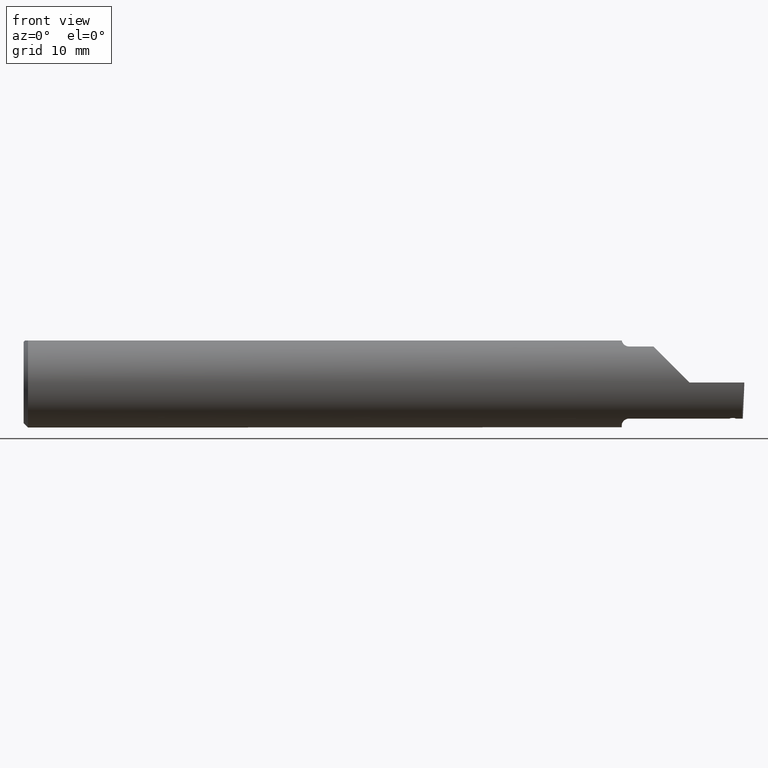
[diagram: clean part render]
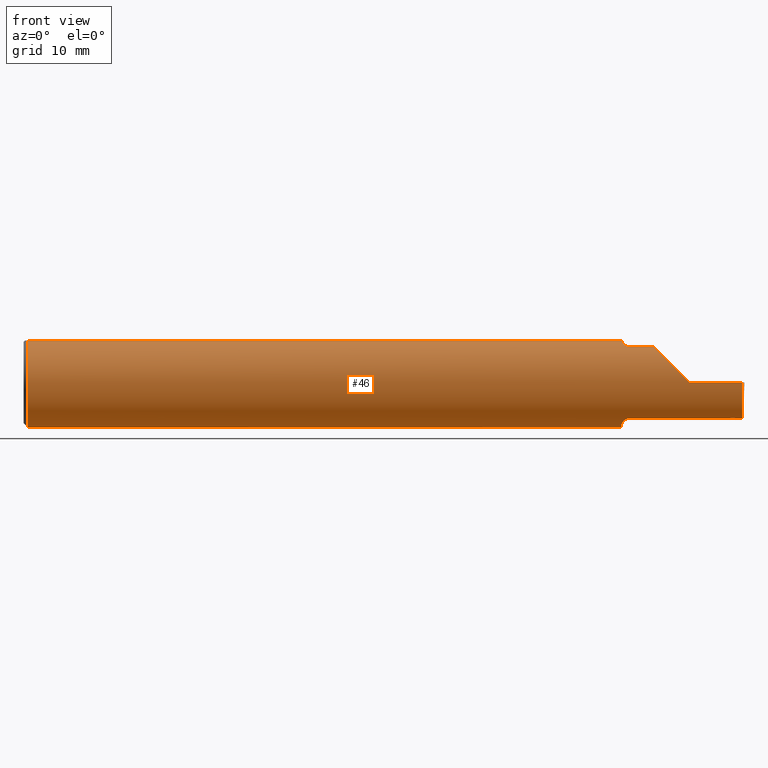
[diagram: same view with one face highlighted and labeled with its STEP entity id]
A machine part, front view. The second image highlights one B-rep face of the part: STEP entity #46.
In plain terms, the highlighted cylindrical surface (partial cylindrical patch) has radius 3.9649 mm, axis along (-1, -0, -0).
Its self-contained STEP definition (entity closure, byte-faithful):
#7 = CARTESIAN_POINT ( 'NONE',  ( 2.087810002172222568, -0.08909999999984934138, 0.1281733201569306146 ) ) ;
#15 = CARTESIAN_POINT ( 'NONE',  ( 2.078804698179400834, -0.07664326672408303120, -0.1360300949145557547 ) ) ;
#31 = VECTOR ( 'NONE', #563, 39.37007874015748143 ) ;
#35 = EDGE_CURVE ( 'NONE', #548, #254, #1086, .T. ) ;
#44 = CARTESIAN_POINT ( 'NONE',  ( 2.075000000000000178, 0.05497272050753900657, 0.1460999999999999799 ) ) ;
#46 = ADVANCED_FACE ( 'NONE', ( #75 ), #996, .T. ) ;
#47 = AXIS2_PLACEMENT_3D ( 'NONE', #1066, #739, #731 ) ;
#61 = VECTOR ( 'NONE', #922, 39.37007874015748143 ) ;
#65 = CARTESIAN_POINT ( 'NONE',  ( 0.000000000000000000, -0.05497272050753900657, 0.1460999999999999799 ) ) ;
#75 = FACE_OUTER_BOUND ( 'NONE', #260, .T. ) ;
#90 = CARTESIAN_POINT ( 'NONE',  ( 2.074999999999999734, -0.05502817059483720158, 0.1460791239054557156 ) ) ;
#92 = ORIENTED_EDGE ( 'NONE', *, *, #659, .F. ) ;
#95 = CARTESIAN_POINT ( 'NONE',  ( 2.074999999999999734, -0.06156212810510084538, 0.1436177747480845979 ) ) ;
#122 = CARTESIAN_POINT ( 'NONE',  ( 2.470920899338892252, -0.09360841750841730757, -0.1249186702281520484 ) ) ;
#142 = ORIENTED_EDGE ( 'NONE', *, *, #227, .F. ) ;
#161 = VERTEX_POINT ( 'NONE', #686 ) ;
#171 = CARTESIAN_POINT ( 'NONE',  ( 2.310000000000000053, -0.1560999999999999888, 2.326828918379970872E-17 ) ) ;
#177 = CARTESIAN_POINT ( 'NONE',  ( 2.075844056398636894, -0.06777540567362902446, 0.1407770456887921517 ) ) ;
#180 = CARTESIAN_POINT ( 'NONE',  ( 2.100000000000000089, -0.09360841750841744635, -0.1249186702281520206 ) ) ;
#183 = CARTESIAN_POINT ( 'NONE',  ( 2.460151538880410715, -0.09614402534613833429, -0.1229778415936229746 ) ) ;
#184 = B_SPLINE_CURVE_WITH_KNOTS ( 'NONE', 3,
 ( #963, #1040, #267, #547, #15, #688, #974, #468 ),
 .UNSPECIFIED., .F., .F.,
 ( 4, 2, 2, 4 ),
 ( 0.0003463854958010656741, 0.0006107451645895158390, 0.0008751048333779660581, 0.001403824170954859774 ),
 .UNSPECIFIED. ) ;
#186 = EDGE_CURVE ( 'NONE', #254, #670, #1007, .T. ) ;
#201 = CARTESIAN_POINT ( 'NONE',  ( 2.466870854321840056, -0.09646808989141875124, -0.1227237640982618699 ) ) ;
#203 = VECTOR ( 'NONE', #553, 39.37007874015748143 ) ;
#206 = LINE ( 'NONE', #384, #237 ) ;
#218 = ORIENTED_EDGE ( 'NONE', *, *, #35, .F. ) ;
#227 = EDGE_CURVE ( 'NONE', #486, #548, #184, .T. ) ;
#234 = ORIENTED_EDGE ( 'NONE', *, *, #720, .F. ) ;
#237 = VECTOR ( 'NONE', #884, 39.37007874015748143 ) ;
#238 = LINE ( 'NONE', #643, #31 ) ;
#240 = CARTESIAN_POINT ( 'NONE',  ( 0.000000000000000000, 0.000000000000000000, 0.000000000000000000 ) ) ;
#243 = EDGE_CURVE ( 'NONE', #850, #287, #786, .T. ) ;
#246 = DIRECTION ( 'NONE',  ( -1.000000000000000000, -0.000000000000000000, -0.000000000000000000 ) ) ;
#252 = CARTESIAN_POINT ( 'NONE',  ( 2.185081329771848768, -0.09360841750841755737, 0.1249186702281519651 ) ) ;
#254 = VERTEX_POINT ( 'NONE', #44 ) ;
#257 = CARTESIAN_POINT ( 'NONE',  ( 2.091072683443917946, -0.09172126259464279119, 0.1263511429915041839 ) ) ;
#260 = EDGE_LOOP ( 'NONE', ( #790, #898, #681, #954, #316, #1036, #336, #558, #657, #515, #398, #447, #218, #142, #621, #234, #857, #92, #322 ) ) ;
#267 = CARTESIAN_POINT ( 'NONE',  ( 2.083312875394041974, -0.08466547365232440781, -0.1311808389156051691 ) ) ;
#269 = EDGE_CURVE ( 'NONE', #822, #850, #1022, .T. ) ;
#270 = CARTESIAN_POINT ( 'NONE',  ( 2.095364775055372775, -0.09360841750841757125, 0.1249186702281519512 ) ) ;
#274 = CARTESIAN_POINT ( 'NONE',  ( 2.456413632544129033, -0.09596309661999688490, -0.1231190240665558377 ) ) ;
#277 = VERTEX_POINT ( 'NONE', #180 ) ;
#282 = CARTESIAN_POINT ( 'NONE',  ( 0.01499999999999999944, -0.05497272050753900657, 0.1460999999999999799 ) ) ;
#286 = CARTESIAN_POINT ( 'NONE',  ( 2.470372502178056262, -0.09436783887071170662, -0.1243495941099337643 ) ) ;
#287 = VERTEX_POINT ( 'NONE', #1055 ) ;
#289 = CARTESIAN_POINT ( 'NONE',  ( 0.01499999999999999771, 0.05497272050753900657, 0.1460999999999999799 ) ) ;
#307 = DIRECTION ( 'NONE',  ( 1.000000000000000000, 0.000000000000000000, 0.000000000000000000 ) ) ;
#316 = ORIENTED_EDGE ( 'NONE', *, *, #967, .F. ) ;
#320 = CARTESIAN_POINT ( 'NONE',  ( 2.492495113650786021, -0.1336908980339254205, -0.09488266708345007017 ) ) ;
#322 = ORIENTED_EDGE ( 'NONE', *, *, #243, .F. ) ;
#323 = EDGE_CURVE ( 'NONE', #822, #838, #365, .T. ) ;
#328 = AXIS2_PLACEMENT_3D ( 'NONE', #1024, #521, #853 ) ;
#336 = ORIENTED_EDGE ( 'NONE', *, *, #574, .F. ) ;
#344 = EDGE_CURVE ( 'NONE', #779, #611, #718, .T. ) ;
#351 = CARTESIAN_POINT ( 'NONE',  ( 2.469692882972973180, -0.09506542078539534368, -0.1238152914558943163 ) ) ;
#354 = DIRECTION ( 'NONE',  ( 0.000000000000000000, 0.000000000000000000, 1.000000000000000000 ) ) ;
#360 = CARTESIAN_POINT ( 'NONE',  ( 2.449421300275350877, -0.09360841750841730757, -0.1249186702281520206 ) ) ;
#365 =( BOUNDED_CURVE ( )  B_SPLINE_CURVE ( 3, ( #727, #320, #490, #403 ),
 .UNSPECIFIED., .F., .T. ) 
 B_SPLINE_CURVE_WITH_KNOTS ( ( 4, 4 ),
 ( 0.05521439950980804034, 0.9829226100289724100 ),
 .UNSPECIFIED. ) 
 CURVE ( )  GEOMETRIC_REPRESENTATION_ITEM ( )  RATIONAL_B_SPLINE_CURVE ( ( 1.000000000000000000, 0.9295565493311498395, 0.9295565493311498395, 1.000000000000000000 ) ) 
 REPRESENTATION_ITEM ( '' )  );
#366 = CARTESIAN_POINT ( 'NONE',  ( 2.454544682360471963, -0.09587255434380594077, -0.1231895957532970348 ) ) ;
#372 = B_SPLINE_CURVE_WITH_KNOTS ( 'NONE', 3,
 ( #7, #257, #270, #598 ),
 .UNSPECIFIED., .F., .F.,
 ( 4, 4 ),
 ( 0.001050593969402363994, 0.001393966686689414704 ),
 .UNSPECIFIED. ) ;
#382 = EDGE_CURVE ( 'NONE', #838, #871, #238, .T. ) ;
#384 = CARTESIAN_POINT ( 'NONE',  ( 2.280749999999999833, -0.09360841750841747411, -0.1249186702281520206 ) ) ;
#395 = CARTESIAN_POINT ( 'NONE',  ( 0.01499999999999999944, 0.000000000000000000, -0.1560999999999999888 ) ) ;
#398 = ORIENTED_EDGE ( 'NONE', *, *, #806, .F. ) ;
#403 = CARTESIAN_POINT ( 'NONE',  ( 2.494588929872255001, -0.1561000000000000443, 0.000000000000000000 ) ) ;
#422 = CARTESIAN_POINT ( 'NONE',  ( 2.259912409421232837, -0.1560999999999999888, 0.05008759057876772947 ) ) ;
#423 = DIRECTION ( 'NONE',  ( 0.000000000000000000, 0.000000000000000000, -1.000000000000000000 ) ) ;
#447 = ORIENTED_EDGE ( 'NONE', *, *, #186, .F. ) ;
#450 = VERTEX_POINT ( 'NONE', #815 ) ;
#454 = AXIS2_PLACEMENT_3D ( 'NONE', #240, #246, #916 ) ;
#463 = CARTESIAN_POINT ( 'NONE',  ( 2.465758433798330707, -0.09641450834075608600, -0.1227658445228568540 ) ) ;
#468 = CARTESIAN_POINT ( 'NONE',  ( 2.074999999999999734, -0.05502817059483720158, -0.1460791239054557156 ) ) ;
#475 = VERTEX_POINT ( 'NONE', #395 ) ;
#476 =( BOUNDED_CURVE ( )  B_SPLINE_CURVE ( 3, ( #769, #422, #759, #252 ),
 .UNSPECIFIED., .F., .T. ) 
 B_SPLINE_CURVE_WITH_KNOTS ( ( 4, 4 ),
 ( 4.712388980384689674, 5.640097190903853530 ),
 .UNSPECIFIED. ) 
 CURVE ( )  GEOMETRIC_REPRESENTATION_ITEM ( )  RATIONAL_B_SPLINE_CURVE ( ( 1.000000000000000000, 0.9295565493311498395, 0.9295565493311498395, 1.000000000000000000 ) ) 
 REPRESENTATION_ITEM ( '' )  );
#486 = VERTEX_POINT ( 'NONE', #697 ) ;
#487 = AXIS2_PLACEMENT_3D ( 'NONE', #662, #307, #423 ) ;
#490 = CARTESIAN_POINT ( 'NONE',  ( 2.493277140361873201, -0.1561000000000000165, -0.05008759057876776416 ) ) ;
#501 = CARTESIAN_POINT ( 'NONE',  ( 2.085319203512566943, -0.08709887368156789267, 0.1295644080582773749 ) ) ;
#513 = CARTESIAN_POINT ( 'NONE',  ( 2.449883294675948786, -0.09430673936945621616, -0.1243953793205239688 ) ) ;
#515 = ORIENTED_EDGE ( 'NONE', *, *, #607, .F. ) ;
#517 = CARTESIAN_POINT ( 'NONE',  ( 2.091077244708473337, -0.09172492714866099794, -0.1263485955677197681 ) ) ;
#521 = DIRECTION ( 'NONE',  ( -1.000000000000000000, -0.000000000000000000, -0.000000000000000000 ) ) ;
#523 = CARTESIAN_POINT ( 'NONE',  ( 0.01499999999999999944, 0.000000000000000000, 0.000000000000000000 ) ) ;
#528 = DIRECTION ( 'NONE',  ( 1.000000000000000000, 0.000000000000000000, 0.000000000000000000 ) ) ;
#530 = B_SPLINE_CURVE_WITH_KNOTS ( 'NONE', 3,
 ( #690, #928, #513, #848 ),
 .UNSPECIFIED., .F., .F.,
 ( 4, 4 ),
 ( 0.000000000000000000, 7.520563975082667787E-05 ),
 .UNSPECIFIED. ) ;
#534 = VERTEX_POINT ( 'NONE', #836 ) ;
#537 = B_SPLINE_CURVE_WITH_KNOTS ( 'NONE', 3,
 ( #588, #1011, #517, #1000 ),
 .UNSPECIFIED., .F., .F.,
 ( 4, 4 ),
 ( 1.958690481382186847E-07, 0.0003463854958010656741 ),
 .UNSPECIFIED. ) ;
#544 = CARTESIAN_POINT ( 'NONE',  ( 2.280749999999999833, -0.09360841750841747411, 0.1249186702281520206 ) ) ;
#547 = CARTESIAN_POINT ( 'NONE',  ( 2.080057722617700833, -0.07943655142502260846, -0.1344116409581928018 ) ) ;
#548 = VERTEX_POINT ( 'NONE', #1012 ) ;
#553 = DIRECTION ( 'NONE',  ( -1.000000000000000000, -0.000000000000000000, -0.000000000000000000 ) ) ;
#554 = VERTEX_POINT ( 'NONE', #360 ) ;
#558 = ORIENTED_EDGE ( 'NONE', *, *, #344, .F. ) ;
#559 = CIRCLE ( 'NONE', #756, 0.1560999999999999888 ) ;
#560 = VECTOR ( 'NONE', #565, 39.37007874015748143 ) ;
#563 = DIRECTION ( 'NONE',  ( -1.000000000000000000, -0.000000000000000000, -0.000000000000000000 ) ) ;
#565 = DIRECTION ( 'NONE',  ( 1.000000000000000000, 0.000000000000000000, 0.000000000000000000 ) ) ;
#574 = EDGE_CURVE ( 'NONE', #611, #534, #1014, .T. ) ;
#587 = EDGE_CURVE ( 'NONE', #871, #161, #476, .T. ) ;
#588 = CARTESIAN_POINT ( 'NONE',  ( 2.100000000000000089, -0.09360841750841744635, -0.1249186702281520206 ) ) ;
#594 = CARTESIAN_POINT ( 'NONE',  ( 2.450806800179778477, -0.09569100258184319585, -0.1233306207917630876 ) ) ;
#597 = CIRCLE ( 'NONE', #328, 0.1560999999999999888 ) ;
#598 = CARTESIAN_POINT ( 'NONE',  ( 2.100000000000000089, -0.09360841750841747411, 0.1249186702281520206 ) ) ;
#603 = CARTESIAN_POINT ( 'NONE',  ( 2.074999999999999734, -0.05502817059483720158, 0.1460791239054557156 ) ) ;
#607 = EDGE_CURVE ( 'NONE', #475, #687, #559, .T. ) ;
#608 = CARTESIAN_POINT ( 'NONE',  ( 2.494588929872255001, -0.1561000000000000443, 0.000000000000000000 ) ) ;
#609 = CARTESIAN_POINT ( 'NONE',  ( 2.464512453544993598, -0.09635449354740048544, -0.1228129773130644253 ) ) ;
#611 = VERTEX_POINT ( 'NONE', #90 ) ;
#621 = ORIENTED_EDGE ( 'NONE', *, *, #883, .F. ) ;
#623 = EDGE_CURVE ( 'NONE', #534, #450, #372, .T. ) ;
#628 = CARTESIAN_POINT ( 'NONE',  ( 2.458282582672677741, -0.09605363889351807571, -0.1230484523818955317 ) ) ;
#632 = LINE ( 'NONE', #544, #721 ) ;
#643 = CARTESIAN_POINT ( 'NONE',  ( 3.749399456654646757E-32, -0.1560999999999999888, 3.061616997868384127E-16 ) ) ;
#656 = EDGE_CURVE ( 'NONE', #905, #554, #530, .T. ) ;
#657 = ORIENTED_EDGE ( 'NONE', *, *, #1082, .F. ) ;
#659 = EDGE_CURVE ( 'NONE', #287, #905, #919, .T. ) ;
#662 = CARTESIAN_POINT ( 'NONE',  ( 2.075000000000000178, 0.000000000000000000, 0.000000000000000000 ) ) ;
#670 = VERTEX_POINT ( 'NONE', #289 ) ;
#680 = CARTESIAN_POINT ( 'NONE',  ( 0.000000000000000000, 0.05497272050753900657, 0.1460999999999999799 ) ) ;
#681 = ORIENTED_EDGE ( 'NONE', *, *, #382, .T. ) ;
#685 = CARTESIAN_POINT ( 'NONE',  ( 2.465758433798330707, -0.09641450834075608600, -0.1227658445228568540 ) ) ;
#686 = CARTESIAN_POINT ( 'NONE',  ( 2.185081329771848768, -0.09360841750841755737, 0.1249186702281519651 ) ) ;
#687 = VERTEX_POINT ( 'NONE', #282 ) ;
#688 = CARTESIAN_POINT ( 'NONE',  ( 2.075847904676645150, -0.06780574120017832107, -0.1407631332654325773 ) ) ;
#690 = CARTESIAN_POINT ( 'NONE',  ( 2.450806800179778477, -0.09569100258184319585, -0.1233306207917630876 ) ) ;
#697 = CARTESIAN_POINT ( 'NONE',  ( 2.087810002172886481, -0.08909999999996048858, -0.1281733201567834268 ) ) ;
#717 = CARTESIAN_POINT ( 'NONE',  ( 2.280749999999999833, -0.09360841750841747411, -0.1249186702281520206 ) ) ;
#718 = CIRCLE ( 'NONE', #47, 0.1560999999999999888 ) ;
#720 = EDGE_CURVE ( 'NONE', #554, #277, #206, .T. ) ;
#721 = VECTOR ( 'NONE', #528, 39.37007874015748143 ) ;
#727 = CARTESIAN_POINT ( 'NONE',  ( 2.492408115719126460, -0.09360841750841747411, -0.1249186702281520206 ) ) ;
#731 = DIRECTION ( 'NONE',  ( 0.000000000000000000, 0.000000000000000000, -1.000000000000000000 ) ) ;
#739 = DIRECTION ( 'NONE',  ( 1.000000000000000000, 0.000000000000000000, 0.000000000000000000 ) ) ;
#744 = LINE ( 'NONE', #65, #560 ) ;
#756 = AXIS2_PLACEMENT_3D ( 'NONE', #523, #921, #354 ) ;
#759 = CARTESIAN_POINT ( 'NONE',  ( 2.215117332916550552, -0.1336908980339254205, 0.09488266708345004241 ) ) ;
#769 = CARTESIAN_POINT ( 'NONE',  ( 2.310000000000000053, -0.1560999999999999888, 2.326828918379970872E-17 ) ) ;
#776 = CARTESIAN_POINT ( 'NONE',  ( 2.080056522840238564, -0.07943464720522702693, 0.1344128205797975040 ) ) ;
#779 = VERTEX_POINT ( 'NONE', #818 ) ;
#786 = B_SPLINE_CURVE_WITH_KNOTS ( 'NONE', 3,
 ( #122, #286, #351, #958, #201, #463 ),
 .UNSPECIFIED., .F., .F.,
 ( 4, 2, 4 ),
 ( 0.0002236906814576222866, 0.0003060031443916449664, 0.0003883156073256676462 ),
 .UNSPECIFIED. ) ;
#790 = ORIENTED_EDGE ( 'NONE', *, *, #269, .F. ) ;
#806 = EDGE_CURVE ( 'NONE', #670, #475, #597, .T. ) ;
#815 = CARTESIAN_POINT ( 'NONE',  ( 2.100000000000000089, -0.09360841750841747411, 0.1249186702281520206 ) ) ;
#818 = CARTESIAN_POINT ( 'NONE',  ( 2.075000000000000178, -0.05497272050753899270, 0.1460999999999999799 ) ) ;
#822 = VERTEX_POINT ( 'NONE', #940 ) ;
#836 = CARTESIAN_POINT ( 'NONE',  ( 2.087810002172222568, -0.08909999999984934138, 0.1281733201569306146 ) ) ;
#838 = VERTEX_POINT ( 'NONE', #608 ) ;
#848 = CARTESIAN_POINT ( 'NONE',  ( 2.449421300275350877, -0.09360841750841730757, -0.1249186702281520206 ) ) ;
#850 = VERTEX_POINT ( 'NONE', #1018 ) ;
#853 = DIRECTION ( 'NONE',  ( 0.000000000000000000, 0.000000000000000000, 1.000000000000000000 ) ) ;
#857 = ORIENTED_EDGE ( 'NONE', *, *, #656, .F. ) ;
#871 = VERTEX_POINT ( 'NONE', #171 ) ;
#883 = EDGE_CURVE ( 'NONE', #277, #486, #537, .T. ) ;
#884 = DIRECTION ( 'NONE',  ( -1.000000000000000000, -0.000000000000000000, -0.000000000000000000 ) ) ;
#898 = ORIENTED_EDGE ( 'NONE', *, *, #323, .T. ) ;
#905 = VERTEX_POINT ( 'NONE', #594 ) ;
#915 = CARTESIAN_POINT ( 'NONE',  ( 2.078785422859119603, -0.07659497035394365050, 0.1360571150960169506 ) ) ;
#916 = DIRECTION ( 'NONE',  ( 0.000000000000000000, 0.000000000000000000, 1.000000000000000000 ) ) ;
#919 = B_SPLINE_CURVE_WITH_KNOTS ( 'NONE', 3,
 ( #685, #609, #1019, #941, #183, #628, #274, #366, #1050, #953 ),
 .UNSPECIFIED., .F., .F.,
 ( 4, 3, 3, 4 ),
 ( 0.000000000000000000, 9.512159469260359206E-05, 0.0002378039910551556116, 0.0003804863916248924297 ),
 .UNSPECIFIED. ) ;
#921 = DIRECTION ( 'NONE',  ( -1.000000000000000000, -0.000000000000000000, -0.000000000000000000 ) ) ;
#922 = DIRECTION ( 'NONE',  ( -1.000000000000000000, -0.000000000000000000, -0.000000000000000000 ) ) ;
#928 = CARTESIAN_POINT ( 'NONE',  ( 2.450345122212929105, -0.09500094058780107764, -0.1238660330326939868 ) ) ;
#940 = CARTESIAN_POINT ( 'NONE',  ( 2.492408115719126460, -0.09360841750841747411, -0.1249186702281520206 ) ) ;
#941 = CARTESIAN_POINT ( 'NONE',  ( 2.462020501176412690, -0.09623425573207612660, -0.1229071927256228242 ) ) ;
#953 = CARTESIAN_POINT ( 'NONE',  ( 2.450806800179778477, -0.09569100258184319585, -0.1233306207917630876 ) ) ;
#954 = ORIENTED_EDGE ( 'NONE', *, *, #587, .T. ) ;
#958 = CARTESIAN_POINT ( 'NONE',  ( 2.467958605918126214, -0.09612678835017125778, -0.1229930940699261593 ) ) ;
#963 = CARTESIAN_POINT ( 'NONE',  ( 2.087810002172886481, -0.08909999999996048858, -0.1281733201567834268 ) ) ;
#967 = EDGE_CURVE ( 'NONE', #450, #161, #632, .T. ) ;
#974 = CARTESIAN_POINT ( 'NONE',  ( 2.074999999999998845, -0.06152246774674052093, -0.1436327148497735240 ) ) ;
#996 = CYLINDRICAL_SURFACE ( 'NONE', #454, 0.1560999999999999888 ) ;
#1000 = CARTESIAN_POINT ( 'NONE',  ( 2.087810002172886481, -0.08909999999996048858, -0.1281733201567834268 ) ) ;
#1006 = CARTESIAN_POINT ( 'NONE',  ( 2.087810002172222568, -0.08909999999984934138, 0.1281733201569306146 ) ) ;
#1007 = LINE ( 'NONE', #680, #61 ) ;
#1011 = CARTESIAN_POINT ( 'NONE',  ( 2.095361275910303522, -0.09360841750841759901, -0.1249186702281519512 ) ) ;
#1012 = CARTESIAN_POINT ( 'NONE',  ( 2.074999999999999734, -0.05502817059483720158, -0.1460791239054557156 ) ) ;
#1014 = B_SPLINE_CURVE_WITH_KNOTS ( 'NONE', 3,
 ( #603, #95, #177, #915, #776, #1091, #501, #1006 ),
 .UNSPECIFIED., .F., .F.,
 ( 4, 2, 2, 4 ),
 ( 2.042507625483139074E-06, 0.0005263182385139235754, 0.0007884561039581438387, 0.001050593969402363994 ),
 .UNSPECIFIED. ) ;
#1018 = CARTESIAN_POINT ( 'NONE',  ( 2.470920899338892252, -0.09360841750841730757, -0.1249186702281520484 ) ) ;
#1019 = CARTESIAN_POINT ( 'NONE',  ( 2.463266476005208983, -0.09629440932100168105, -0.1228600934816201778 ) ) ;
#1022 = LINE ( 'NONE', #717, #203 ) ;
#1024 = CARTESIAN_POINT ( 'NONE',  ( 0.01499999999999999944, 0.000000000000000000, 0.000000000000000000 ) ) ;
#1036 = ORIENTED_EDGE ( 'NONE', *, *, #623, .F. ) ;
#1040 = CARTESIAN_POINT ( 'NONE',  ( 2.085315048287044171, -0.08709553534231935512, -0.1295667287130568279 ) ) ;
#1050 = CARTESIAN_POINT ( 'NONE',  ( 2.452675738242223069, -0.09578185624603499648, -0.1232601283369376410 ) ) ;
#1055 = CARTESIAN_POINT ( 'NONE',  ( 2.465758433798330707, -0.09641450834075608600, -0.1227658445228568540 ) ) ;
#1066 = CARTESIAN_POINT ( 'NONE',  ( 2.075000000000000178, 0.000000000000000000, 0.000000000000000000 ) ) ;
#1082 = EDGE_CURVE ( 'NONE', #687, #779, #744, .T. ) ;
#1086 = CIRCLE ( 'NONE', #487, 0.1560999999999999888 ) ;
#1091 = CARTESIAN_POINT ( 'NONE',  ( 2.083314215045239060, -0.08466760255782122824, 0.1311795204669789217 ) ) ;